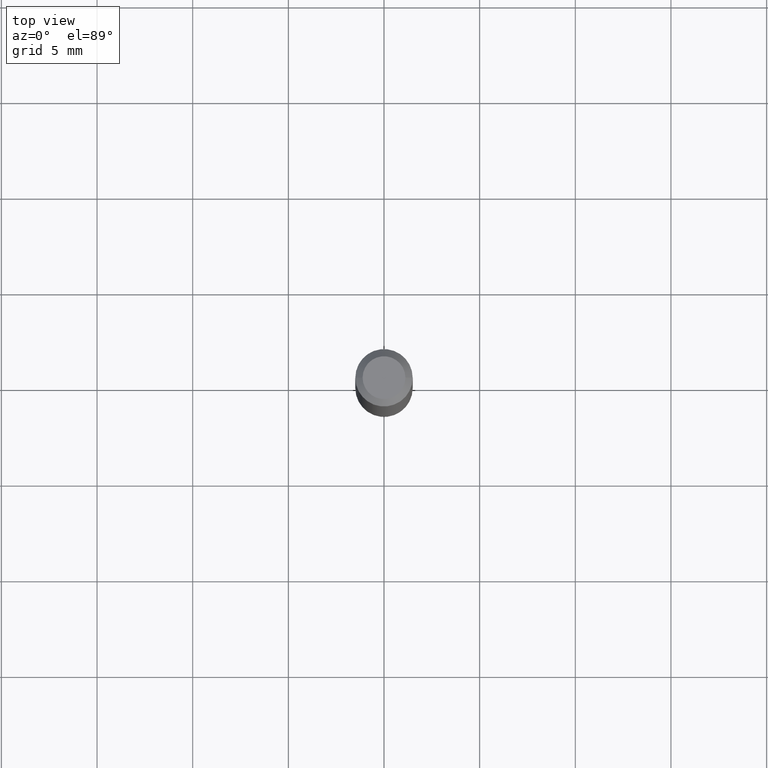
[diagram: clean part render]
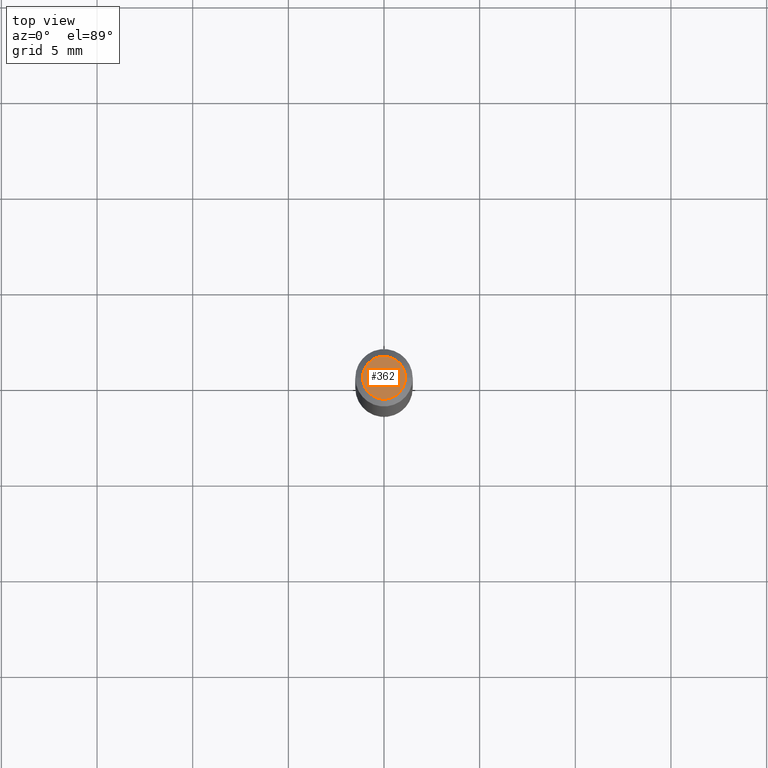
[diagram: same view with one face highlighted and labeled with its STEP entity id]
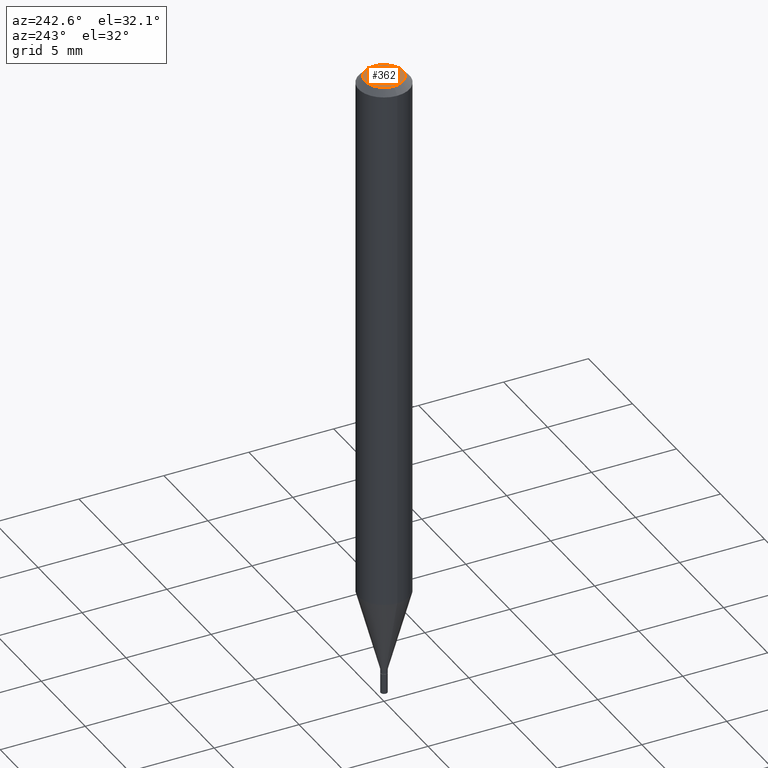
[diagram: same view with one face highlighted and labeled with its STEP entity id]
A machine part, top view. The second image highlights one B-rep face of the part: STEP entity #362.
A second angle (auxiliary view) of the same face is appended — the face is thin or edge-on in the first view.
In plain terms, the highlighted planar face has unit normal (0, -0, -1).
Its self-contained STEP definition (entity closure, byte-faithful):
#22 = PLANE ( 'NONE',  #257 ) ;
#29 = CIRCLE ( 'NONE', #208, 0.04404999999999999888 ) ;
#46 = ORIENTED_EDGE ( 'NONE', *, *, #102, .T. ) ;
#48 = CARTESIAN_POINT ( 'NONE',  ( -1.129890276342019696E-44, 1.613183862664992778E-30, 4.620342216119358569E-16 ) ) ;
#82 = DIRECTION ( 'NONE',  ( 2.438088387897960049E-29, -3.491481338843145188E-15, -1.000000000000000000 ) ) ;
#86 = FACE_OUTER_BOUND ( 'NONE', #437, .T. ) ;
#98 = DIRECTION ( 'NONE',  ( 1.000000000000000000, -6.982962677686265922E-15, 4.819687581474398999E-29 ) ) ;
#102 = EDGE_CURVE ( 'NONE', #314, #407, #342, .T. ) ;
#161 = AXIS2_PLACEMENT_3D ( 'NONE', #423, #382, #98 ) ;
#163 = DIRECTION ( 'NONE',  ( -2.445468806185136597E-29, 3.491481338843145583E-15, 1.000000000000000000 ) ) ;
#208 = AXIS2_PLACEMENT_3D ( 'NONE', #48, #163, #387 ) ;
#226 = DIRECTION ( 'NONE',  ( -1.000000000000000000, 6.982962677686265922E-15, -4.876176775795935793E-29 ) ) ;
#233 = CARTESIAN_POINT ( 'NONE',  ( -0.04404999999999999888, 3.337856159934042520E-16, 4.620342216119336875E-16 ) ) ;
#257 = AXIS2_PLACEMENT_3D ( 'NONE', #263, #82, #226 ) ;
#263 = CARTESIAN_POINT ( 'NONE',  ( 3.075995059520799729E-16, 0.04404999999999999888, 7.721735782992738734E-17 ) ) ;
#276 = CARTESIAN_POINT ( 'NONE',  ( 0.04404999999999999888, -3.798447818264452683E-16, 4.620342216119383221E-16 ) ) ;
#314 = VERTEX_POINT ( 'NONE', #233 ) ;
#335 = ORIENTED_EDGE ( 'NONE', *, *, #377, .T. ) ;
#342 = CIRCLE ( 'NONE', #161, 0.04404999999999999888 ) ;
#362 = ADVANCED_FACE ( 'NONE', ( #86 ), #22, .F. ) ;
#377 = EDGE_CURVE ( 'NONE', #407, #314, #29, .T. ) ;
#382 = DIRECTION ( 'NONE',  ( -2.445468806185136597E-29, 3.491481338843145583E-15, 1.000000000000000000 ) ) ;
#387 = DIRECTION ( 'NONE',  ( 1.000000000000000000, -6.982962677686265922E-15, 4.819687581474398999E-29 ) ) ;
#407 = VERTEX_POINT ( 'NONE', #276 ) ;
#423 = CARTESIAN_POINT ( 'NONE',  ( -1.129890276342019696E-44, 1.613183862664992778E-30, 4.620342216119358569E-16 ) ) ;
#437 = EDGE_LOOP ( 'NONE', ( #46, #335 ) ) ;